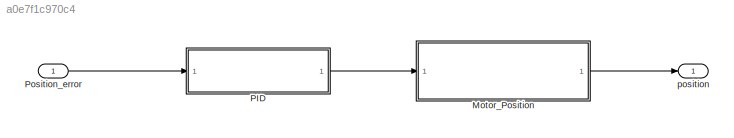
MODEL slx_a0e7f1c970c4
KIND model
CONFIG AbsTol = auto
CONFIG EnableMultiTasking = off
CONFIG FixedStep = auto
CONFIG MaxStep = auto
CONFIG MinStep = auto
CONFIG RelTol = 1e-3
CONFIG SampleTimeConstraint = Unconstrained
CONFIG SolverName = VariableStepAuto
CONFIG StartTime = 0.0
CONFIG StopTime = 10.0
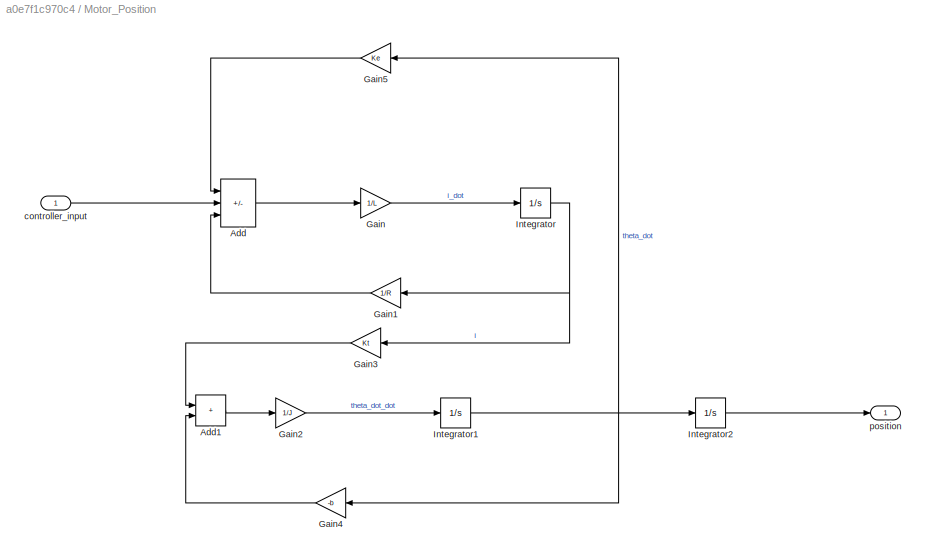
BLOCK [SubSystem] Motor_Position
  Ports = [1, 1]
  RequestExecContextInheritance = off
BLOCK [Sum] Motor_Position/Add
  IconShape = rectangular
  Inputs = -+-
  Ports = [3, 1]
BLOCK [Sum] Motor_Position/Add1
  IconShape = rectangular
  Ports = [2, 1]
BLOCK [Gain] Motor_Position/Gain
  Gain = 1/L
BLOCK [Gain] Motor_Position/Gain1
  Gain = 1/R
  NameLocation = top
BLOCK [Gain] Motor_Position/Gain2
  Gain = 1/J
BLOCK [Gain] Motor_Position/Gain3
  Gain = Kt
  NameLocation = top
BLOCK [Gain] Motor_Position/Gain4
  Gain = -b
  NameLocation = top
BLOCK [Gain] Motor_Position/Gain5
  Gain = Ke
  NameLocation = top
BLOCK [Integrator] Motor_Position/Integrator
  Ports = [1, 1]
BLOCK [Integrator] Motor_Position/Integrator1
  Ports = [1, 1]
BLOCK [Integrator] Motor_Position/Integrator2
  Ports = [1, 1]
BLOCK [Inport] Motor_Position/controller_input
BLOCK [Outport] Motor_Position/position
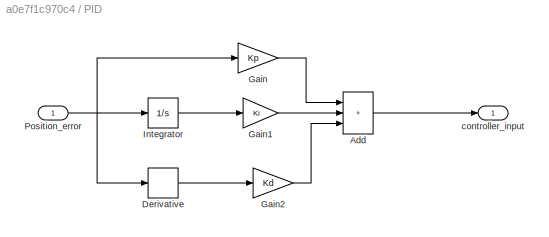
BLOCK [SubSystem] PID
  Ports = [1, 1]
  RequestExecContextInheritance = off
BLOCK [Sum] PID/Add
  IconShape = rectangular
  Inputs = +++
  Ports = [3, 1]
BLOCK [Derivative] PID/Derivative
BLOCK [Gain] PID/Gain
  Gain = Kp
BLOCK [Gain] PID/Gain1
  Gain = Ki
BLOCK [Gain] PID/Gain2
  Gain = Kd
BLOCK [Integrator] PID/Integrator
  Ports = [1, 1]
BLOCK [Inport] PID/Position_error
BLOCK [Outport] PID/controller_input
BLOCK [Inport] Position_error
  OutDataTypeStr = double
  PortDimensions = 1
  SampleTime = 0
  SamplingMode = Sample based
  SignalType = real
BLOCK [Outport] position
  OutDataTypeStr = double
  PortDimensions = 1
  SampleTime = 0
  SamplingMode = Sample based
  SignalType = real
LINE Motor_Position/Add1:1 -> Motor_Position/Gain2:1
LINE Motor_Position/Add:1 -> Motor_Position/Gain:1
LINE Motor_Position/Gain1:1 -> Motor_Position/Add:3
LINE Motor_Position/Gain2:1 -> Motor_Position/Integrator1:1
LINE Motor_Position/Gain3:1 -> Motor_Position/Add1:1
LINE Motor_Position/Gain4:1 -> Motor_Position/Add1:2
LINE Motor_Position/Gain5:1 -> Motor_Position/Add:1
LINE Motor_Position/Gain:1 -> Motor_Position/Integrator:1
NET Motor_Position/Integrator1:1 -> Motor_Position/Gain4:1, Motor_Position/Gain5:1, Motor_Position/Integrator2:1
LINE Motor_Position/Integrator2:1 -> Motor_Position/position:1
NET Motor_Position/Integrator:1 -> Motor_Position/Gain1:1, Motor_Position/Gain3:1
LINE Motor_Position/controller_input:1 -> Motor_Position/Add:2
LINE Motor_Position:1 -> position:1
LINE PID/Add:1 -> PID/controller_input:1
LINE PID/Derivative:1 -> PID/Gain2:1
LINE PID/Gain1:1 -> PID/Add:2
LINE PID/Gain2:1 -> PID/Add:3
LINE PID/Gain:1 -> PID/Add:1
LINE PID/Integrator:1 -> PID/Gain1:1
NET PID/Position_error:1 -> PID/Derivative:1, PID/Gain:1, PID/Integrator:1
LINE PID:1 -> Motor_Position:1
LINE Position_error:1 -> PID:1
note: NET lines group one-source signal fan-out (src -> all destinations, sorted); 1:1 wires keep LINE
